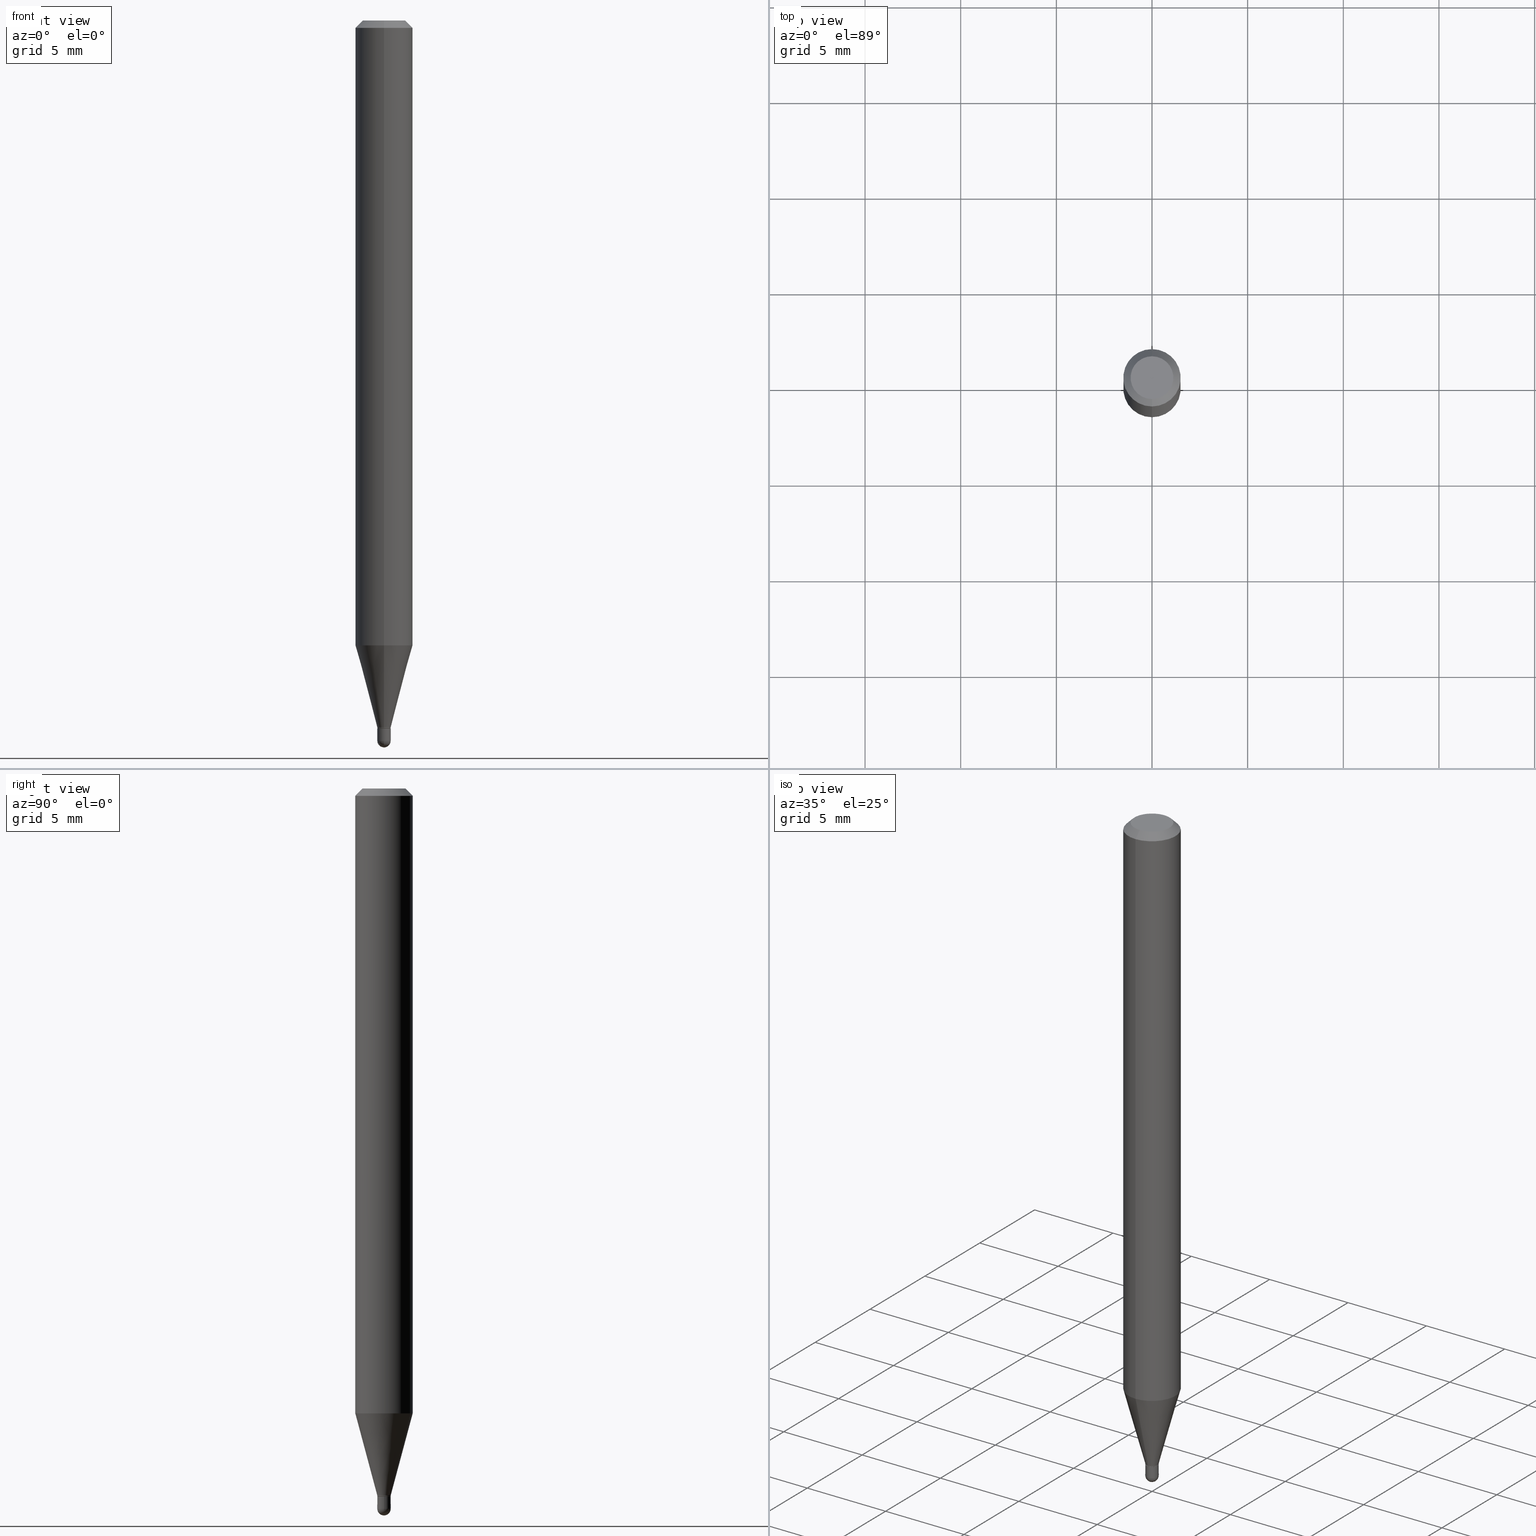
[diagram: canonical four-view strip — front | top / right | iso, engineering-drawing reading convention]
A machine part, canonical four-view strip (front | top / right | iso — engineering-drawing reading convention). The complete STEP part file that produces these views, byte-faithful:
ISO-10303-21;
HEADER;
FILE_DESCRIPTION (( 'STEP AP203' ),
    '1' );
FILE_NAME ('05048.STEP',
    '2024-03-08T21:13:14',
    ( '' ),
    ( '' ),
    'SwSTEP 2.0',
    'SolidWorks 2023',
    '' );
FILE_SCHEMA (( 'CONFIG_CONTROL_DESIGN' ));
ENDSEC;

DATA;
#1 = ORIENTED_EDGE ( 'NONE', *, *, #148, .T. ) ;
#2 = CARTESIAN_POINT ( 'NONE',  ( 3.599717260347271507E-16, 0.04404999999999999888, -2.343019103179918348E-16 ) ) ;
#3 = APPROVAL ( #60, 'UNSPECIFIED' ) ;
#4 = DIRECTION ( 'NONE',  ( -2.445498150151118420E-29, 3.491439316613704829E-15, 1.000000000000000000 ) ) ;
#5 = APPLICATION_CONTEXT ( 'configuration controlled 3d designs of mechanical parts and assemblies' ) ;
#6 = FACE_OUTER_BOUND ( 'NONE', #197, .T. ) ;
#7 = CARTESIAN_POINT ( 'NONE',  ( 0.000000000000000000, 0.000000000000000000, 0.000000000000000000 ) ) ;
#8 = EDGE_CURVE ( 'NONE', #277, #139, #27, .T. ) ;
#9 = DIRECTION ( 'NONE',  ( -2.445498150151118420E-29, 3.491439316613704829E-15, 1.000000000000000000 ) ) ;
#10 = CIRCLE ( 'NONE', #479, 0.01379999999999992344 ) ;
#11 = DIRECTION ( 'NONE',  ( 0.000000000000000000, 0.000000000000000000, 1.000000000000000000 ) ) ;
#12 = LOCAL_TIME ( 16, 13, 14.00000000000000000, #417 ) ;
#13 = DIRECTION ( 'NONE',  ( -6.982962677686265133E-15, -1.000000000000000000, 0.000000000000000000 ) ) ;
#14 = DIRECTION ( 'NONE',  ( 2.445498150151118420E-29, -3.491439316613704434E-15, -1.000000000000000000 ) ) ;
#15 = CARTESIAN_POINT ( 'NONE',  ( 3.562357155325133829E-29, -5.085979652511183214E-15, -1.456699999999999884 ) ) ;
#16 = AXIS2_PLACEMENT_3D ( 'NONE', #164, #508, #434 ) ;
#17 = LOCAL_TIME ( 16, 13, 14.00000000000000000, #221 ) ;
#18 = FACE_OUTER_BOUND ( 'NONE', #414, .T. ) ;
#19 = EDGE_CURVE ( 'NONE', #124, #453, #383, .T. ) ;
#20 = DIRECTION ( 'NONE',  ( -2.445498150151118420E-29, 3.491439316613704829E-15, 1.000000000000000000 ) ) ;
#21 = VERTEX_POINT ( 'NONE', #121 ) ;
#22 = CARTESIAN_POINT ( 'NONE',  ( 0.000000000000000000, 0.000000000000000000, 0.000000000000000000 ) ) ;
#23 = PERSON_AND_ORGANIZATION_ROLE ( 'classification_officer' ) ;
#24 = VERTEX_POINT ( 'NONE', #509 ) ;
#25 = DIRECTION ( 'NONE',  ( -6.982962677686265922E-15, -1.000000000000000000, 0.000000000000000000 ) ) ;
#26 = CC_DESIGN_APPROVAL ( #131, ( #146 ) ) ;
#27 = CIRCLE ( 'NONE', #105, 0.01379999999999999977 ) ;
#28 = PERSON_AND_ORGANIZATION ( #63, #408 ) ;
#29 = EDGE_LOOP ( 'NONE', ( #106, #378, #238, #275, #465 ) ) ;
#30 = DIRECTION ( 'NONE',  ( -2.445498150151118420E-29, 3.491439316613704829E-15, 1.000000000000000000 ) ) ;
#31 = DIRECTION ( 'NONE',  ( -2.445498150151118420E-29, 3.491439316613704829E-15, 1.000000000000000000 ) ) ;
#32 = ORIENTED_EDGE ( 'NONE', *, *, #181, .F. ) ;
#33 = CARTESIAN_POINT ( 'NONE',  ( -9.636488495203464137E-17, -0.01380000000000505475, -1.456199999999999939 ) ) ;
#34 = AXIS2_PLACEMENT_3D ( 'NONE', #502, #20, #25 ) ;
#35 = ORIENTED_EDGE ( 'NONE', *, *, #278, .T. ) ;
#36 = DIRECTION ( 'NONE',  ( -2.445498150151118420E-29, 3.491439316613704829E-15, 1.000000000000000000 ) ) ;
#37 = EDGE_LOOP ( 'NONE', ( #349, #182, #32, #72 ) ) ;
#38 = DIRECTION ( 'NONE',  ( -2.445498150151118420E-29, 3.491439316613704829E-15, 1.000000000000000000 ) ) ;
#39 = CARTESIAN_POINT ( 'NONE',  ( 3.562314409969888354E-29, -5.086040866292809657E-15, -1.456699999999999884 ) ) ;
#40 = CYLINDRICAL_SURFACE ( 'NONE', #287, 0.01379999999999978640 ) ;
#41 = AXIS2_PLACEMENT_3D ( 'NONE', #86, #286, #251 ) ;
#42 = AXIS2_PLACEMENT_3D ( 'NONE', #500, #30, #220 ) ;
#43 =( LENGTH_UNIT ( ) NAMED_UNIT ( * ) SI_UNIT ( $, .METRE. ) );
#44 = DIMENSIONAL_EXPONENTS ( 1.000000000000000000, 0.000000000000000000, 0.000000000000000000, 0.000000000000000000, 0.000000000000000000, 0.000000000000000000, 0.000000000000000000 ) ;
#45 = DIRECTION ( 'NONE',  ( -2.445498150151118420E-29, 3.491439316613704829E-15, 1.000000000000000000 ) ) ;
#46 = DIRECTION ( 'NONE',  ( -2.445498150151118701E-29, 3.491439316613704434E-15, 1.000000000000000000 ) ) ;
#47 = CIRCLE ( 'NONE', #144, 0.01329999999999999932 ) ;
#48 = CARTESIAN_POINT ( 'NONE',  ( 3.075995059520799729E-16, 0.04404999999999999888, -1.940499061074127601E-16 ) ) ;
#49 = EDGE_CURVE ( 'NONE', #124, #24, #89, .T. ) ;
#50 = APPROVAL_ROLE ( '' ) ;
#51 = DIRECTION ( 'NONE',  ( -2.445498150151118420E-29, 3.491439316613704829E-15, 1.000000000000000000 ) ) ;
#52 = UNCERTAINTY_MEASURE_WITH_UNIT (LENGTH_MEASURE( 1.000000000000000082E-05 ), #326, 'distance_accuracy_value', 'NONE');
#53 = DATE_AND_TIME ( #411, #288 ) ;
#54 = ORIENTED_EDGE ( 'NONE', *, *, #325, .F. ) ;
#55 = FACE_OUTER_BOUND ( 'NONE', #29, .T. ) ;
#56 = CALENDAR_DATE ( 2024, 8, 3 ) ;
#57 = CC_DESIGN_SECURITY_CLASSIFICATION ( #146, ( #359 ) ) ;
#58 = CARTESIAN_POINT ( 'NONE',  ( -9.287340361319169587E-17, -0.01330000000000508553, -1.456699999999999884 ) ) ;
#59 = PLANE ( 'NONE',  #225 ) ;
#60 = APPROVAL_STATUS ( 'not_yet_approved' ) ;
#61 = ORIENTED_EDGE ( 'NONE', *, *, #486, .T. ) ;
#62 = CARTESIAN_POINT ( 'NONE',  ( 4.123439461173743285E-16, 0.05904999999999994975, -0.01500000000000028741 ) ) ;
#63 = PERSON ( 'UNSPECIFIED', 'UNSPECIFIED', 'UNSPECIFIED', ('UNSPECIFIED'), ('UNSPECIFIED'), ('UNSPECIFIED') ) ;
#64 = DESIGN_CONTEXT ( 'detailed design', #116, 'design' ) ;
#65 = COORDINATED_UNIVERSAL_TIME_OFFSET ( 5, 0, .BEHIND. ) ;
#66 = ORIENTED_EDGE ( 'NONE', *, *, #333, .F. ) ;
#67 = CARTESIAN_POINT ( 'NONE',  ( 3.624918411408227122E-29, -5.175422788567193795E-15, -1.482299999999999729 ) ) ;
#68 = AXIS2_PLACEMENT_3D ( 'NONE', #422, #253, #415 ) ;
#69 = AXIS2_PLACEMENT_3D ( 'NONE', #133, #292, #248 ) ;
#70 = EDGE_CURVE ( 'NONE', #453, #503, #303, .T. ) ;
#71 = CLOSED_SHELL ( 'NONE', ( #210, #191, #240, #91, #452 ) ) ;
#72 = ORIENTED_EDGE ( 'NONE', *, *, #77, .F. ) ;
#73 = CARTESIAN_POINT ( 'NONE',  ( 3.623738281929160025E-29, -5.177112801150018502E-15, -1.482299999999999951 ) ) ;
#74 = ORIENTED_EDGE ( 'NONE', *, *, #421, .T. ) ;
#75 = CARTESIAN_POINT ( 'NONE',  ( -9.636488495203245968E-17, -0.01380000000000473036, -1.454800000000000093 ) ) ;
#76 = EDGE_LOOP ( 'NONE', ( #397, #337, #472, #217 ) ) ;
#77 = EDGE_CURVE ( 'NONE', #316, #222, #212, .T. ) ;
#78 = LINE ( 'NONE', #120, #127 ) ;
#79 = CIRCLE ( 'NONE', #256, 0.01329999999999999932 ) ;
#80 = LOCAL_TIME ( 16, 13, 14.00000000000000000, #108 ) ;
#81 = AXIS2_PLACEMENT_3D ( 'NONE', #299, #461, #153 ) ;
#82 = EDGE_LOOP ( 'NONE', ( #460, #35 ) ) ;
#83 = CARTESIAN_POINT ( 'NONE',  ( 9.805489753492690685E-17, 0.01379999999999457008, -1.454800000000000093 ) ) ;
#84 = VERTEX_POINT ( 'NONE', #451 ) ;
#85 = CYLINDRICAL_SURFACE ( 'NONE', #374, 0.05904999999999999832 ) ;
#86 = CARTESIAN_POINT ( 'NONE',  ( 3.557710708839847100E-29, -5.079345917809617194E-15, -1.454800000000000093 ) ) ;
#87 = EDGE_CURVE ( 'NONE', #84, #399, #481, .T. ) ;
#88 = AXIS2_PLACEMENT_3D ( 'NONE', #90, #45, #177 ) ;
#89 = CIRCLE ( 'NONE', #159, 0.05904999999999999832 ) ;
#90 = CARTESIAN_POINT ( 'NONE',  ( 3.561134406250058226E-29, -5.084233932852877072E-15, -1.456199999999999939 ) ) ;
#91 = ADVANCED_FACE ( 'NONE', ( #97 ), #170, .T. ) ;
#92 = PERSON_AND_ORGANIZATION ( #63, #408 ) ;
#93 = ADVANCED_FACE ( 'NONE', ( #6 ), #477, .T. ) ;
#94 = AXIS2_PLACEMENT_3D ( 'NONE', #140, #307, #454 ) ;
#95 =( GEOMETRIC_REPRESENTATION_CONTEXT ( 3 ) GLOBAL_UNCERTAINTY_ASSIGNED_CONTEXT ( ( #52 ) ) GLOBAL_UNIT_ASSIGNED_CONTEXT ( ( #326, #444, #446 ) ) REPRESENTATION_CONTEXT ( 'NONE', 'WORKASPACE' ) );
#96 = LINE ( 'NONE', #476, #249 ) ;
#97 = FACE_OUTER_BOUND ( 'NONE', #119, .T. ) ;
#98 = DATE_TIME_ROLE ( 'creation_date' ) ;
#99 = FACE_OUTER_BOUND ( 'NONE', #112, .T. ) ;
#100 = CC_DESIGN_DATE_AND_TIME_ASSIGNMENT ( #53, #98, ( #273 ) ) ;
#101 = DATE_AND_TIME ( #498, #416 ) ;
#102 = VECTOR ( 'NONE', #320, 39.37007874015748143 ) ;
#103 = DIRECTION ( 'NONE',  ( -2.445498150151118420E-29, 3.491439316613704829E-15, 1.000000000000000000 ) ) ;
#104 = PRODUCT ( '05048', '05048', '', ( #291 ) ) ;
#105 = AXIS2_PLACEMENT_3D ( 'NONE', #39, #394, #196 ) ;
#106 = ORIENTED_EDGE ( 'NONE', *, *, #87, .T. ) ;
#107 = DIRECTION ( 'NONE',  ( -4.937700262164674260E-15, -0.7071067811865632269, 0.7071067811865319186 ) ) ;
#108 = COORDINATED_UNIVERSAL_TIME_OFFSET ( 5, 0, .BEHIND. ) ;
#109 = ORIENTED_EDGE ( 'NONE', *, *, #315, .F. ) ;
#110 = ADVANCED_FACE ( 'NONE', ( #448 ), #409, .F. ) ;
#111 = CARTESIAN_POINT ( 'NONE',  ( -0.01379999999999999977, -5.032676929895108444E-15, -1.456699999999999884 ) ) ;
#112 = EDGE_LOOP ( 'NONE', ( #507, #458 ) ) ;
#113 = FACE_OUTER_BOUND ( 'NONE', #117, .T. ) ;
#114 = AXIS2_PLACEMENT_3D ( 'NONE', #377, #223, #151 ) ;
#115 = CC_DESIGN_PERSON_AND_ORGANIZATION_ASSIGNMENT ( #92, #132, ( #104 ) ) ;
#116 = APPLICATION_CONTEXT ( 'configuration controlled 3d designs of mechanical parts and assemblies' ) ;
#117 = EDGE_LOOP ( 'NONE', ( #229, #61, #352, #462 ) ) ;
#118 = CARTESIAN_POINT ( 'NONE',  ( 9.450218385612891726E-17, 0.01329999999999491311, -1.456699999999999884 ) ) ;
#119 = EDGE_LOOP ( 'NONE', ( #489, #267, #439, #192 ) ) ;
#120 = CARTESIAN_POINT ( 'NONE',  ( -0.01379999999999999977, 9.805489753489382399E-17, -6.788130424551770621E-31 ) ) ;
#121 = CARTESIAN_POINT ( 'NONE',  ( -9.636488495203245968E-17, -0.01380000000000473036, -1.454800000000000093 ) ) ;
#122 = ORIENTED_EDGE ( 'NONE', *, *, #70, .F. ) ;
#123 = LINE ( 'NONE', #356, #319 ) ;
#124 = VERTEX_POINT ( 'NONE', #381 ) ;
#125 = CARTESIAN_POINT ( 'NONE',  ( 0.01379999999999999977, -9.636488495207048524E-17, 6.729123950598392144E-31 ) ) ;
#126 = FACE_OUTER_BOUND ( 'NONE', #332, .T. ) ;
#127 = VECTOR ( 'NONE', #350, 39.37007874015748143 ) ;
#128 = CC_DESIGN_APPROVAL ( #3, ( #359 ) ) ;
#129 = DIRECTION ( 'NONE',  ( -6.982962677686265922E-15, -1.000000000000000000, 3.491439316613704434E-15 ) ) ;
#130 = VERTEX_POINT ( 'NONE', #228 ) ;
#131 = APPROVAL ( #258, 'UNSPECIFIED' ) ;
#132 = PERSON_AND_ORGANIZATION_ROLE ( 'design_owner' ) ;
#133 = CARTESIAN_POINT ( 'NONE',  ( 0.000000000000000000, 0.000000000000000000, 0.000000000000000000 ) ) ;
#134 = CONICAL_SURFACE ( 'NONE', #435, 0.01329999999999999932, 0.7853981633974739252 ) ;
#135 = DATE_AND_TIME ( #56, #17 ) ;
#136 = CIRCLE ( 'NONE', #34, 0.01379999999999965109 ) ;
#137 = AXIS2_PLACEMENT_3D ( 'NONE', #15, #9, #13 ) ;
#138 = CARTESIAN_POINT ( 'NONE',  ( 3.624918411408227122E-29, -5.175422788567193795E-15, -1.482299999999999729 ) ) ;
#139 = VERTEX_POINT ( 'NONE', #111 ) ;
#140 = CARTESIAN_POINT ( 'NONE',  ( 3.668247225226697196E-31, -5.237158974920585691E-17, -0.01500000000000008098 ) ) ;
#141 = APPROVAL_DATE_TIME ( #263, #3 ) ;
#142 = DIRECTION ( 'NONE',  ( 1.000000000000000000, -6.982962677686267499E-15, 4.876176775795936353E-29 ) ) ;
#143 = SECURITY_CLASSIFICATION_LEVEL ( 'unclassified' ) ;
#144 = AXIS2_PLACEMENT_3D ( 'NONE', #317, #470, #280 ) ;
#145 = ORIENTED_EDGE ( 'NONE', *, *, #247, .T. ) ;
#146 = SECURITY_CLASSIFICATION ( '', '', #143 ) ;
#147 = CYLINDRICAL_SURFACE ( 'NONE', #174, 0.05904999999999999832 ) ;
#148 = EDGE_CURVE ( 'NONE', #501, #21, #136, .T. ) ;
#149 = PERSON_AND_ORGANIZATION ( #63, #408 ) ;
#150 = EDGE_LOOP ( 'NONE', ( #109, #232 ) ) ;
#151 = DIRECTION ( 'NONE',  ( -6.982962677686265922E-15, -1.000000000000000000, 0.000000000000000000 ) ) ;
#152 = VERTEX_POINT ( 'NONE', #58 ) ;
#153 = DIRECTION ( 'NONE',  ( -6.982962677686265922E-15, -1.000000000000000000, 0.000000000000000000 ) ) ;
#154 = MANIFOLD_SOLID_BREP ( 'Body-Move/Copy2[2]', #341 ) ;
#155 = ORIENTED_EDGE ( 'NONE', *, *, #208, .T. ) ;
#156 = DIRECTION ( 'NONE',  ( -1.000000000000000000, 6.982962677686265922E-15, -4.883557194083112340E-29 ) ) ;
#157 = CIRCLE ( 'NONE', #167, 0.01379999999999999977 ) ;
#158 = ADVANCED_FACE ( 'NONE', ( #459 ), #147, .T. ) ;
#159 = AXIS2_PLACEMENT_3D ( 'NONE', #162, #340, #214 ) ;
#160 = EDGE_LOOP ( 'NONE', ( #66, #74, #306, #283 ) ) ;
#161 = DIRECTION ( 'NONE',  ( -6.982962677686265922E-15, -1.000000000000000000, 0.000000000000000000 ) ) ;
#162 = CARTESIAN_POINT ( 'NONE',  ( 3.144726477425218544E-29, -4.489728059127768371E-15, -1.285924700957508993 ) ) ;
#163 = ORIENTED_EDGE ( 'NONE', *, *, #231, .T. ) ;
#164 = CARTESIAN_POINT ( 'NONE',  ( 3.623738281929160025E-29, -5.177112801150018502E-15, -1.482299999999999951 ) ) ;
#165 = ORIENTED_EDGE ( 'NONE', *, *, #245, .F. ) ;
#166 = LINE ( 'NONE', #125, #450 ) ;
#167 = AXIS2_PLACEMENT_3D ( 'NONE', #379, #308, #334 ) ;
#168 = EDGE_CURVE ( 'NONE', #389, #21, #335, .T. ) ;
#169 = CARTESIAN_POINT ( 'NONE',  ( 3.656895686714981183E-29, -5.226140249917465537E-15, -1.496099999999999985 ) ) ;
#170 = SPHERICAL_SURFACE ( 'NONE', #190, 0.01379999999999999977 ) ;
#171 = CYLINDRICAL_SURFACE ( 'NONE', #207, 0.01379999999999999977 ) ;
#172 = FACE_OUTER_BOUND ( 'NONE', #76, .T. ) ;
#173 = AXIS2_PLACEMENT_3D ( 'NONE', #22, #185, #142 ) ;
#174 = AXIS2_PLACEMENT_3D ( 'NONE', #189, #386, #259 ) ;
#175 = ORIENTED_EDGE ( 'NONE', *, *, #19, .F. ) ;
#176 = EDGE_CURVE ( 'NONE', #21, #501, #206, .T. ) ;
#177 = DIRECTION ( 'NONE',  ( -6.982962677686265922E-15, -1.000000000000000000, 0.000000000000000000 ) ) ;
#178 = DIRECTION ( 'NONE',  ( -2.445498150151118420E-29, 3.491439316613704434E-15, 1.000000000000000000 ) ) ;
#179 = VECTOR ( 'NONE', #418, 39.37007874015748143 ) ;
#180 = APPROVAL_DATE_TIME ( #135, #131 ) ;
#181 = EDGE_CURVE ( 'NONE', #222, #84, #281, .T. ) ;
#182 = ORIENTED_EDGE ( 'NONE', *, *, #392, .T. ) ;
#183 = SPHERICAL_SURFACE ( 'NONE', #114, 0.01379999999999999977 ) ;
#184 = EDGE_CURVE ( 'NONE', #424, #346, #250, .T. ) ;
#185 = DIRECTION ( 'NONE',  ( -2.445468806185136597E-29, 3.491481338843145583E-15, 1.000000000000000000 ) ) ;
#186 = ORIENTED_EDGE ( 'NONE', *, *, #278, .F. ) ;
#187 = DIRECTION ( 'NONE',  ( -1.000000000000000000, 6.982962677686265922E-15, -4.876176775795935793E-29 ) ) ;
#188 = CIRCLE ( 'NONE', #16, 0.01379999999999999977 ) ;
#189 = CARTESIAN_POINT ( 'NONE',  ( 0.000000000000000000, 0.000000000000000000, 0.000000000000000000 ) ) ;
#190 = AXIS2_PLACEMENT_3D ( 'NONE', #474, #285, #323 ) ;
#191 = ADVANCED_FACE ( 'NONE', ( #491 ), #183, .T. ) ;
#192 = ORIENTED_EDGE ( 'NONE', *, *, #87, .F. ) ;
#193 = CARTESIAN_POINT ( 'NONE',  ( 3.557710708839847100E-29, -5.079345917809617194E-15, -1.454800000000000093 ) ) ;
#194 = ORIENTED_EDGE ( 'NONE', *, *, #325, .T. ) ;
#195 = DIRECTION ( 'NONE',  ( -6.982962677686265133E-15, -1.000000000000000000, 0.000000000000000000 ) ) ;
#196 = DIRECTION ( 'NONE',  ( 1.000000000000000000, -6.982962677686234367E-15, 0.000000000000000000 ) ) ;
#197 = EDGE_LOOP ( 'NONE', ( #433, #467, #313, #391 ) ) ;
#198 = CARTESIAN_POINT ( 'NONE',  ( -9.636488495203423462E-17, -0.01380000000000517792, -1.482299999999999729 ) ) ;
#199 = EDGE_LOOP ( 'NONE', ( #241, #227, #469, #165 ) ) ;
#200 = DIRECTION ( 'NONE',  ( -2.445498150151118420E-29, 3.491439316613704829E-15, 1.000000000000000000 ) ) ;
#201 = ORIENTED_EDGE ( 'NONE', *, *, #77, .T. ) ;
#202 = DIRECTION ( 'NONE',  ( 4.937700262164548042E-15, 0.7071067811865451302, -0.7071067811865499042 ) ) ;
#203 = ADVANCED_FACE ( 'NONE', ( #265 ), #302, .T. ) ;
#204 = DIRECTION ( 'NONE',  ( -6.982962677686265133E-15, -1.000000000000000000, 0.000000000000000000 ) ) ;
#205 = CIRCLE ( 'NONE', #88, 0.01379999999999992344 ) ;
#206 = CIRCLE ( 'NONE', #81, 0.01379999999999965109 ) ;
#207 = AXIS2_PLACEMENT_3D ( 'NONE', #370, #324, #213 ) ;
#208 = EDGE_CURVE ( 'NONE', #399, #316, #157, .T. ) ;
#209 = DIRECTION ( 'NONE',  ( 6.982962677686265922E-15, 1.000000000000000000, -3.505890868245046092E-15 ) ) ;
#210 = ADVANCED_FACE ( 'NONE', ( #55 ), #490, .T. ) ;
#211 = CC_DESIGN_PERSON_AND_ORGANIZATION_ASSIGNMENT ( #413, #423, ( #273 ) ) ;
#212 = CIRCLE ( 'NONE', #375, 0.01379999999999999977 ) ;
#213 = DIRECTION ( 'NONE',  ( 1.000000000000000000, -6.982962677686267499E-15, 4.876176775795936353E-29 ) ) ;
#214 = DIRECTION ( 'NONE',  ( -6.982962677686265922E-15, -1.000000000000000000, 4.626330217890369336E-15 ) ) ;
#215 = PLANE ( 'NONE',  #495 ) ;
#216 = PERSON_AND_ORGANIZATION ( #63, #408 ) ;
#217 = ORIENTED_EDGE ( 'NONE', *, *, #70, .T. ) ;
#218 = CARTESIAN_POINT ( 'NONE',  ( 0.01379999999999999977, -5.227096712382071878E-15, -1.482299999999999729 ) ) ;
#219 = CC_DESIGN_PERSON_AND_ORGANIZATION_ASSIGNMENT ( #28, #23, ( #146 ) ) ;
#220 = DIRECTION ( 'NONE',  ( -6.982962677686265133E-15, -1.000000000000000000, 3.491439316613704829E-15 ) ) ;
#221 = COORDINATED_UNIVERSAL_TIME_OFFSET ( 5, 0, .BEHIND. ) ;
#222 = VERTEX_POINT ( 'NONE', #218 ) ;
#223 = DIRECTION ( 'NONE',  ( 1.000000000000000000, -6.982962677686265922E-15, 4.883557194083112901E-29 ) ) ;
#224 = ADVANCED_FACE ( 'NONE', ( #18 ), #427, .T. ) ;
#225 = AXIS2_PLACEMENT_3D ( 'NONE', #304, #255, #187 ) ;
#226 = PERSON_AND_ORGANIZATION ( #63, #408 ) ;
#227 = ORIENTED_EDGE ( 'NONE', *, *, #333, .T. ) ;
#228 = CARTESIAN_POINT ( 'NONE',  ( 9.627854069552891045E-17, 0.01329999999999491311, -1.456699999999999884 ) ) ;
#229 = ORIENTED_EDGE ( 'NONE', *, *, #294, .T. ) ;
#230 = CARTESIAN_POINT ( 'NONE',  ( 0.01379999999999999977, -5.182405751244879809E-15, -1.456699999999999884 ) ) ;
#231 = EDGE_CURVE ( 'NONE', #24, #503, #425, .T. ) ;
#232 = ORIENTED_EDGE ( 'NONE', *, *, #421, .F. ) ;
#233 = DIRECTION ( 'NONE',  ( -4.851104656540964275E-15, -0.7071067811865500152, -0.7071067811865450192 ) ) ;
#234 = VERTEX_POINT ( 'NONE', #463 ) ;
#235 = CARTESIAN_POINT ( 'NONE',  ( -0.01379999999999999977, -5.032676929895108444E-15, -1.482299999999999729 ) ) ;
#236 = CIRCLE ( 'NONE', #457, 0.01379999999999999977 ) ;
#237 = APPROVAL_PERSON_ORGANIZATION ( #449, #363, #50 ) ;
#238 = ORIENTED_EDGE ( 'NONE', *, *, #8, .F. ) ;
#239 = LINE ( 'NONE', #83, #102 ) ;
#240 = ADVANCED_FACE ( 'NONE', ( #99 ), #59, .F. ) ;
#241 = ORIENTED_EDGE ( 'NONE', *, *, #315, .T. ) ;
#242 = CARTESIAN_POINT ( 'NONE',  ( 0.000000000000000000, 0.000000000000000000, 0.000000000000000000 ) ) ;
#243 = DIRECTION ( 'NONE',  ( -6.982962677686265922E-15, -1.000000000000000000, 3.505890868245046092E-15 ) ) ;
#244 = VECTOR ( 'NONE', #314, 39.37007874015748143 ) ;
#245 = EDGE_CURVE ( 'NONE', #152, #389, #338, .T. ) ;
#246 = CARTESIAN_POINT ( 'NONE',  ( -4.123439461173736383E-16, -0.05905000000000005383, -0.01499999999999987454 ) ) ;
#247 = EDGE_CURVE ( 'NONE', #24, #124, #339, .T. ) ;
#248 = DIRECTION ( 'NONE',  ( -6.982962677686266711E-15, -1.000000000000000000, 3.491439316613704829E-15 ) ) ;
#249 = VECTOR ( 'NONE', #46, 39.37007874015748143 ) ;
#250 = CIRCLE ( 'NONE', #42, 0.04404999999999999888 ) ;
#251 = DIRECTION ( 'NONE',  ( -6.982962677686265922E-15, -1.000000000000000000, 0.000000000000000000 ) ) ;
#252 = PERSON_AND_ORGANIZATION_ROLE ( 'design_supplier' ) ;
#253 = DIRECTION ( 'NONE',  ( -2.445498150151118420E-29, 3.491439316613704829E-15, 1.000000000000000000 ) ) ;
#254 = EDGE_CURVE ( 'NONE', #424, #453, #262, .T. ) ;
#255 = DIRECTION ( 'NONE',  ( 2.438088387897960049E-29, -3.491481338843145188E-15, -1.000000000000000000 ) ) ;
#256 = AXIS2_PLACEMENT_3D ( 'NONE', #390, #36, #195 ) ;
#257 = ADVANCED_FACE ( 'NONE', ( #347 ), #134, .T. ) ;
#258 = APPROVAL_STATUS ( 'not_yet_approved' ) ;
#259 = DIRECTION ( 'NONE',  ( -6.982962677686265922E-15, -1.000000000000000000, 3.491439316613704829E-15 ) ) ;
#260 = COORDINATED_UNIVERSAL_TIME_OFFSET ( 5, 0, .BEHIND. ) ;
#261 = VERTEX_POINT ( 'NONE', #169 ) ;
#262 = LINE ( 'NONE', #62, #443 ) ;
#263 = DATE_AND_TIME ( #492, #80 ) ;
#264 = ORIENTED_EDGE ( 'NONE', *, *, #351, .F. ) ;
#265 = FACE_OUTER_BOUND ( 'NONE', #420, .T. ) ;
#266 = CONICAL_SURFACE ( 'NONE', #41, 0.01379999999999965109, 0.2617993877991523499 ) ;
#267 = ORIENTED_EDGE ( 'NONE', *, *, #344, .T. ) ;
#268 = VECTOR ( 'NONE', #388, 39.37007874015748143 ) ;
#269 = CARTESIAN_POINT ( 'NONE',  ( 0.000000000000000000, 0.000000000000000000, 0.000000000000000000 ) ) ;
#270 = EDGE_CURVE ( 'NONE', #503, #453, #487, .T. ) ;
#271 = ORIENTED_EDGE ( 'NONE', *, *, #19, .T. ) ;
#272 = CARTESIAN_POINT ( 'NONE',  ( 3.668247225226697196E-31, -5.237158974920585691E-17, -0.01500000000000008098 ) ) ;
#273 = PRODUCT_DEFINITION ( 'UNKNOWN', '', #359, #64 ) ;
#274 = CARTESIAN_POINT ( 'NONE',  ( 4.195754854663390985E-16, 0.05904999999999999832, -2.061694916460392588E-16 ) ) ;
#275 = ORIENTED_EDGE ( 'NONE', *, *, #441, .F. ) ;
#276 = DIRECTION ( 'NONE',  ( 1.000000000000000000, -6.982962677686234367E-15, 0.000000000000000000 ) ) ;
#277 = VERTEX_POINT ( 'NONE', #230 ) ;
#278 = EDGE_CURVE ( 'NONE', #346, #424, #331, .T. ) ;
#279 = AXIS2_PLACEMENT_3D ( 'NONE', #402, #480, #209 ) ;
#280 = DIRECTION ( 'NONE',  ( -6.982962677686265133E-15, -1.000000000000000000, 0.000000000000000000 ) ) ;
#281 = CIRCLE ( 'NONE', #366, 0.01379999999999999977 ) ;
#282 = ADVANCED_BREP_SHAPE_REPRESENTATION ( '05048', ( #321, #154, #506 ), #95 ) ;
#283 = ORIENTED_EDGE ( 'NONE', *, *, #512, .F. ) ;
#284 = DIRECTION ( 'NONE',  ( -2.445468806185136877E-29, 3.491481338843145188E-15, 1.000000000000000000 ) ) ;
#285 = DIRECTION ( 'NONE',  ( 1.000000000000000000, -6.982962677686265922E-15, 4.883557194083112901E-29 ) ) ;
#286 = DIRECTION ( 'NONE',  ( -2.445498150151118420E-29, 3.491439316613704829E-15, 1.000000000000000000 ) ) ;
#287 = AXIS2_PLACEMENT_3D ( 'NONE', #269, #430, #393 ) ;
#288 = LOCAL_TIME ( 16, 13, 14.00000000000000000, #65 ) ;
#289 = AXIS2_PLACEMENT_3D ( 'NONE', #361, #368, #438 ) ;
#290 = CARTESIAN_POINT ( 'NONE',  ( 2.588151915006488292E-16, 0.01379999999999457008, -1.454800000000000093 ) ) ;
#291 = MECHANICAL_CONTEXT ( 'NONE', #5, 'mechanical' ) ;
#292 = DIRECTION ( 'NONE',  ( -2.445498150151118420E-29, 3.491439316613704829E-15, 1.000000000000000000 ) ) ;
#293 = APPLICATION_PROTOCOL_DEFINITION ( 'international standard', 'config_control_design', 1994, #116 ) ;
#294 = EDGE_CURVE ( 'NONE', #389, #234, #10, .T. ) ;
#295 = DIRECTION ( 'NONE',  ( 6.982962677686265922E-15, 1.000000000000000000, -3.491439316613704434E-15 ) ) ;
#296 = VECTOR ( 'NONE', #107, 39.37007874015748143 ) ;
#297 = PERSON_AND_ORGANIZATION_ROLE ( 'creator' ) ;
#298 = EDGE_LOOP ( 'NONE', ( #175, #311, #163, #122 ) ) ;
#299 = CARTESIAN_POINT ( 'NONE',  ( 3.557710708839847100E-29, -5.079345917809617194E-15, -1.454800000000000093 ) ) ;
#300 = ADVANCED_FACE ( 'NONE', ( #113 ), #40, .T. ) ;
#301 = DIRECTION ( 'NONE',  ( -2.445498150151118701E-29, 3.491439316613704434E-15, 1.000000000000000000 ) ) ;
#302 = CONICAL_SURFACE ( 'NONE', #364, 0.01379999999999965109, 0.2617993877991523499 ) ;
#303 = CIRCLE ( 'NONE', #360, 0.05904999999999999832 ) ;
#304 = CARTESIAN_POINT ( 'NONE',  ( 9.636488495210609491E-17, 0.01379999999999491356, -1.456699999999999884 ) ) ;
#305 = DATE_TIME_ROLE ( 'classification_date' ) ;
#306 = ORIENTED_EDGE ( 'NONE', *, *, #245, .T. ) ;
#307 = DIRECTION ( 'NONE',  ( 2.445498150151118420E-29, -3.491439316613704829E-15, -1.000000000000000000 ) ) ;
#308 = DIRECTION ( 'NONE',  ( -2.445468806185136597E-29, 3.491481338843145583E-15, 1.000000000000000000 ) ) ;
#309 = CONICAL_SURFACE ( 'NONE', #137, 0.01329999999999999932, 0.7853981633974739252 ) ;
#310 = APPROVAL_PERSON_ORGANIZATION ( #149, #131, #485 ) ;
#311 = ORIENTED_EDGE ( 'NONE', *, *, #49, .T. ) ;
#312 = DIRECTION ( 'NONE',  ( 5.024295867788190974E-15, 0.7071067811865681119, 0.7071067811865270336 ) ) ;
#313 = ORIENTED_EDGE ( 'NONE', *, *, #168, .T. ) ;
#314 = DIRECTION ( 'NONE',  ( -1.807323732225343944E-15, -0.2588190451025201844, 0.9659258262890684232 ) ) ;
#315 = EDGE_CURVE ( 'NONE', #152, #130, #79, .T. ) ;
#316 = VERTEX_POINT ( 'NONE', #198 ) ;
#317 = CARTESIAN_POINT ( 'NONE',  ( 3.562357155325133829E-29, -5.085979652511183214E-15, -1.456699999999999884 ) ) ;
#318 = ORIENTED_EDGE ( 'NONE', *, *, #351, .T. ) ;
#319 = VECTOR ( 'NONE', #233, 39.37007874015748143 ) ;
#320 = DIRECTION ( 'NONE',  ( 1.839019923739614515E-15, 0.2588190451025269567, 0.9659258262890665359 ) ) ;
#321 = MANIFOLD_SOLID_BREP ( 'Body-Move/Copy2[1]', #71 ) ;
#322 = DIRECTION ( 'NONE',  ( -2.445498150151118420E-29, 3.491439316613704829E-15, 1.000000000000000000 ) ) ;
#323 = DIRECTION ( 'NONE',  ( -6.982962677686265922E-15, -1.000000000000000000, 0.000000000000000000 ) ) ;
#324 = DIRECTION ( 'NONE',  ( -2.445468806185136597E-29, 3.491481338843145583E-15, 1.000000000000000000 ) ) ;
#325 = EDGE_CURVE ( 'NONE', #501, #124, #239, .T. ) ;
#326 =( CONVERSION_BASED_UNIT ( 'INCH', #327 ) LENGTH_UNIT ( ) NAMED_UNIT ( #44 ) );
#327 = LENGTH_MEASURE_WITH_UNIT ( LENGTH_MEASURE( 0.02539999999999999897 ), #43 );
#328 = CARTESIAN_POINT ( 'NONE',  ( 3.668247225226697196E-31, -5.237158974920585691E-17, -0.01500000000000008098 ) ) ;
#329 = CC_DESIGN_PERSON_AND_ORGANIZATION_ASSIGNMENT ( #419, #252, ( #359 ) ) ;
#330 = CALENDAR_DATE ( 2024, 8, 3 ) ;
#331 = CIRCLE ( 'NONE', #348, 0.04404999999999999888 ) ;
#332 = EDGE_LOOP ( 'NONE', ( #407, #155, #201, #342, #355 ) ) ;
#333 = EDGE_CURVE ( 'NONE', #130, #234, #432, .T. ) ;
#334 = DIRECTION ( 'NONE',  ( 1.000000000000000000, -6.982962677686234367E-15, 0.000000000000000000 ) ) ;
#335 = LINE ( 'NONE', #345, #395 ) ;
#336 = PRODUCT_RELATED_PRODUCT_CATEGORY ( 'detail', '', ( #104 ) ) ;
#337 = ORIENTED_EDGE ( 'NONE', *, *, #184, .F. ) ;
#338 = LINE ( 'NONE', #494, #296 ) ;
#339 = CIRCLE ( 'NONE', #68, 0.05904999999999999832 ) ;
#340 = DIRECTION ( 'NONE',  ( -2.445498150151118420E-29, 3.491439316613704829E-15, 1.000000000000000000 ) ) ;
#341 = CLOSED_SHELL ( 'NONE', ( #300, #447, #224, #158, #203, #504, #354, #445, #110, #475, #257, #93 ) ) ;
#342 = ORIENTED_EDGE ( 'NONE', *, *, #441, .T. ) ;
#343 = DIRECTION ( 'NONE',  ( 1.000000000000000000, -6.982962677686234367E-15, 0.000000000000000000 ) ) ;
#344 = EDGE_CURVE ( 'NONE', #261, #316, #464, .T. ) ;
#345 = CARTESIAN_POINT ( 'NONE',  ( -9.636488495206899380E-17, -0.01379999999999978640, 4.818186256926838306E-17 ) ) ;
#346 = VERTEX_POINT ( 'NONE', #511 ) ;
#347 = FACE_OUTER_BOUND ( 'NONE', #160, .T. ) ;
#348 = AXIS2_PLACEMENT_3D ( 'NONE', #437, #31, #466 ) ;
#349 = ORIENTED_EDGE ( 'NONE', *, *, #344, .F. ) ;
#350 = DIRECTION ( 'NONE',  ( -2.445468806185136877E-29, 3.491481338843145188E-15, 1.000000000000000000 ) ) ;
#351 = EDGE_CURVE ( 'NONE', #21, #24, #398, .T. ) ;
#352 = ORIENTED_EDGE ( 'NONE', *, *, #176, .F. ) ;
#353 = CARTESIAN_POINT ( 'NONE',  ( 3.562357155325133829E-29, -5.085979652511183214E-15, -1.456699999999999884 ) ) ;
#354 = ADVANCED_FACE ( 'NONE', ( #468 ), #85, .T. ) ;
#355 = ORIENTED_EDGE ( 'NONE', *, *, #365, .F. ) ;
#356 = CARTESIAN_POINT ( 'NONE',  ( -4.051124067684085231E-16, -0.05905000000000005383, -0.01499999999999987454 ) ) ;
#357 = AXIS2_PLACEMENT_3D ( 'NONE', #73, #156, #473 ) ;
#358 = DIRECTION ( 'NONE',  ( -6.982962677686265922E-15, -1.000000000000000000, 3.505890868245046092E-15 ) ) ;
#359 = PRODUCT_DEFINITION_FORMATION_WITH_SPECIFIED_SOURCE ( 'ANY', '', #104, .NOT_KNOWN. ) ;
#360 = AXIS2_PLACEMENT_3D ( 'NONE', #328, #51, #243 ) ;
#361 = CARTESIAN_POINT ( 'NONE',  ( 3.624918411408227122E-29, -5.175422788567193795E-15, -1.482299999999999729 ) ) ;
#362 = EDGE_CURVE ( 'NONE', #346, #503, #123, .T. ) ;
#363 = APPROVAL ( #410, 'UNSPECIFIED' ) ;
#364 = AXIS2_PLACEMENT_3D ( 'NONE', #193, #103, #412 ) ;
#365 = EDGE_CURVE ( 'NONE', #139, #277, #236, .T. ) ;
#366 = AXIS2_PLACEMENT_3D ( 'NONE', #67, #456, #343 ) ;
#367 = FACE_OUTER_BOUND ( 'NONE', #150, .T. ) ;
#368 = DIRECTION ( 'NONE',  ( -2.445468806185136597E-29, 3.491481338843145583E-15, 1.000000000000000000 ) ) ;
#369 = EDGE_CURVE ( 'NONE', #399, #139, #78, .T. ) ;
#370 = CARTESIAN_POINT ( 'NONE',  ( 0.000000000000000000, 0.000000000000000000, 0.000000000000000000 ) ) ;
#371 = DATE_AND_TIME ( #330, #12 ) ;
#372 = ORIENTED_EDGE ( 'NONE', *, *, #270, .F. ) ;
#373 = CARTESIAN_POINT ( 'NONE',  ( -4.123439461173739834E-16, -0.05904999999999999832, 2.061694916460392588E-16 ) ) ;
#374 = AXIS2_PLACEMENT_3D ( 'NONE', #242, #38, #396 ) ;
#375 = AXIS2_PLACEMENT_3D ( 'NONE', #138, #401, #484 ) ;
#376 = APPROVAL_DATE_TIME ( #101, #363 ) ;
#377 = CARTESIAN_POINT ( 'NONE',  ( 3.623738281929160025E-29, -5.177112801150018502E-15, -1.482299999999999951 ) ) ;
#378 = ORIENTED_EDGE ( 'NONE', *, *, #369, .T. ) ;
#379 = CARTESIAN_POINT ( 'NONE',  ( 3.624918411408227122E-29, -5.175422788567193795E-15, -1.482299999999999729 ) ) ;
#380 = ORIENTED_EDGE ( 'NONE', *, *, #49, .F. ) ;
#381 = CARTESIAN_POINT ( 'NONE',  ( 4.195754854663704558E-16, 0.05904999999999550886, -1.285924700957509215 ) ) ;
#382 = VECTOR ( 'NONE', #312, 39.37007874015748143 ) ;
#383 = LINE ( 'NONE', #274, #268 ) ;
#384 = APPROVAL_ROLE ( '' ) ;
#385 = EDGE_LOOP ( 'NONE', ( #54, #1, #318, #380 ) ) ;
#386 = DIRECTION ( 'NONE',  ( -2.445498150151118420E-29, 3.491439316613704829E-15, 1.000000000000000000 ) ) ;
#387 = CC_DESIGN_DATE_AND_TIME_ASSIGNMENT ( #371, #305, ( #146 ) ) ;
#388 = DIRECTION ( 'NONE',  ( -2.445498150151118701E-29, 3.491439316613704434E-15, 1.000000000000000000 ) ) ;
#389 = VERTEX_POINT ( 'NONE', #33 ) ;
#390 = CARTESIAN_POINT ( 'NONE',  ( 3.562357155325133829E-29, -5.085979652511183214E-15, -1.456699999999999884 ) ) ;
#391 = ORIENTED_EDGE ( 'NONE', *, *, #148, .F. ) ;
#392 = EDGE_CURVE ( 'NONE', #261, #84, #188, .T. ) ;
#393 = DIRECTION ( 'NONE',  ( -6.982962677686266711E-15, -1.000000000000000000, 3.491439316613704829E-15 ) ) ;
#394 = DIRECTION ( 'NONE',  ( -2.445468806185136597E-29, 3.491481338843145583E-15, 1.000000000000000000 ) ) ;
#395 = VECTOR ( 'NONE', #301, 39.37007874015748143 ) ;
#396 = DIRECTION ( 'NONE',  ( -6.982962677686265922E-15, -1.000000000000000000, 3.491439316613704829E-15 ) ) ;
#397 = ORIENTED_EDGE ( 'NONE', *, *, #362, .F. ) ;
#398 = LINE ( 'NONE', #75, #244 ) ;
#399 = VERTEX_POINT ( 'NONE', #235 ) ;
#400 = DIRECTION ( 'NONE',  ( -2.445468806185136597E-29, 3.491481338843145583E-15, 1.000000000000000000 ) ) ;
#401 = DIRECTION ( 'NONE',  ( -2.445468806185136597E-29, 3.491481338843145583E-15, 1.000000000000000000 ) ) ;
#402 = CARTESIAN_POINT ( 'NONE',  ( 3.668247225226697196E-31, -5.237158974920585691E-17, -0.01500000000000008098 ) ) ;
#403 = FACE_OUTER_BOUND ( 'NONE', #385, .T. ) ;
#404 = CARTESIAN_POINT ( 'NONE',  ( 3.562357155325133829E-29, -5.085979652511183214E-15, -1.456699999999999884 ) ) ;
#405 = FACE_OUTER_BOUND ( 'NONE', #199, .T. ) ;
#406 = AXIS2_PLACEMENT_3D ( 'NONE', #272, #4, #358 ) ;
#407 = ORIENTED_EDGE ( 'NONE', *, *, #369, .F. ) ;
#408 = ORGANIZATION ( 'UNSPECIFIED', 'UNSPECIFIED', '' ) ;
#409 = PLANE ( 'NONE',  #497 ) ;
#410 = APPROVAL_STATUS ( 'not_yet_approved' ) ;
#411 = CALENDAR_DATE ( 2024, 8, 3 ) ;
#412 = DIRECTION ( 'NONE',  ( -6.982962677686265922E-15, -1.000000000000000000, 0.000000000000000000 ) ) ;
#413 = PERSON_AND_ORGANIZATION ( #63, #408 ) ;
#414 = EDGE_LOOP ( 'NONE', ( #186, #483, #493, #431 ) ) ;
#415 = DIRECTION ( 'NONE',  ( -6.982962677686265922E-15, -1.000000000000000000, 4.626330217890369336E-15 ) ) ;
#416 = LOCAL_TIME ( 16, 13, 14.00000000000000000, #260 ) ;
#417 = COORDINATED_UNIVERSAL_TIME_OFFSET ( 5, 0, .BEHIND. ) ;
#418 = DIRECTION ( 'NONE',  ( -2.445498150151118701E-29, 3.491439316613704434E-15, 1.000000000000000000 ) ) ;
#419 = PERSON_AND_ORGANIZATION ( #63, #408 ) ;
#420 = EDGE_LOOP ( 'NONE', ( #429, #194, #436, #264 ) ) ;
#421 = EDGE_CURVE ( 'NONE', #130, #152, #47, .T. ) ;
#422 = CARTESIAN_POINT ( 'NONE',  ( 3.144726477425218544E-29, -4.489728059127768371E-15, -1.285924700957508993 ) ) ;
#423 = PERSON_AND_ORGANIZATION_ROLE ( 'creator' ) ;
#424 = VERTEX_POINT ( 'NONE', #2 ) ;
#425 = LINE ( 'NONE', #373, #179 ) ;
#426 = CC_DESIGN_PERSON_AND_ORGANIZATION_ASSIGNMENT ( #226, #297, ( #359 ) ) ;
#427 = CONICAL_SURFACE ( 'NONE', #94, 0.05904999999999999832, 0.7853981633974483900 ) ;
#428 = CONICAL_SURFACE ( 'NONE', #279, 0.05904999999999999832, 0.7853981633974483900 ) ;
#429 = ORIENTED_EDGE ( 'NONE', *, *, #176, .T. ) ;
#430 = DIRECTION ( 'NONE',  ( -2.445498150151118420E-29, 3.491439316613704829E-15, 1.000000000000000000 ) ) ;
#431 = ORIENTED_EDGE ( 'NONE', *, *, #254, .F. ) ;
#432 = LINE ( 'NONE', #118, #382 ) ;
#433 = ORIENTED_EDGE ( 'NONE', *, *, #486, .F. ) ;
#434 = DIRECTION ( 'NONE',  ( 7.105427357601001070E-15, 1.000000000000000000, 0.000000000000000000 ) ) ;
#435 = AXIS2_PLACEMENT_3D ( 'NONE', #353, #200, #204 ) ;
#436 = ORIENTED_EDGE ( 'NONE', *, *, #247, .F. ) ;
#437 = CARTESIAN_POINT ( 'NONE',  ( 1.968724036736922957E-45, -2.810748601466323041E-31, -8.050400842115813712E-17 ) ) ;
#438 = DIRECTION ( 'NONE',  ( 1.000000000000000000, -6.982962677686234367E-15, 0.000000000000000000 ) ) ;
#439 = ORIENTED_EDGE ( 'NONE', *, *, #208, .F. ) ;
#440 = CARTESIAN_POINT ( 'NONE',  ( 3.562314409969888354E-29, -5.086040866292809657E-15, -1.456699999999999884 ) ) ;
#441 = EDGE_CURVE ( 'NONE', #222, #277, #166, .T. ) ;
#442 = CARTESIAN_POINT ( 'NONE',  ( 4.195754854663707516E-16, 0.05904999999999994975, -0.01500000000000028741 ) ) ;
#443 = VECTOR ( 'NONE', #202, 39.37007874015748143 ) ;
#444 =( NAMED_UNIT ( * ) PLANE_ANGLE_UNIT ( ) SI_UNIT ( $, .RADIAN. ) );
#445 = ADVANCED_FACE ( 'NONE', ( #172 ), #428, .T. ) ;
#446 =( NAMED_UNIT ( * ) SI_UNIT ( $, .STERADIAN. ) SOLID_ANGLE_UNIT ( ) );
#447 = ADVANCED_FACE ( 'NONE', ( #405 ), #309, .T. ) ;
#448 = FACE_OUTER_BOUND ( 'NONE', #82, .T. ) ;
#449 = PERSON_AND_ORGANIZATION ( #63, #408 ) ;
#450 = VECTOR ( 'NONE', #284, 39.37007874015748143 ) ;
#451 = CARTESIAN_POINT ( 'NONE',  ( 9.805489753493006229E-17, 0.01379999999999482335, -1.482299999999999729 ) ) ;
#452 = ADVANCED_FACE ( 'NONE', ( #126 ), #171, .T. ) ;
#453 = VERTEX_POINT ( 'NONE', #442 ) ;
#454 = DIRECTION ( 'NONE',  ( 6.982962677686265922E-15, 1.000000000000000000, -3.505890868245046092E-15 ) ) ;
#455 = SHAPE_DEFINITION_REPRESENTATION ( #488, #282 ) ;
#456 = DIRECTION ( 'NONE',  ( -2.445468806185136597E-29, 3.491481338843145583E-15, 1.000000000000000000 ) ) ;
#457 = AXIS2_PLACEMENT_3D ( 'NONE', #440, #400, #276 ) ;
#458 = ORIENTED_EDGE ( 'NONE', *, *, #365, .T. ) ;
#459 = FACE_OUTER_BOUND ( 'NONE', #510, .T. ) ;
#460 = ORIENTED_EDGE ( 'NONE', *, *, #184, .T. ) ;
#461 = DIRECTION ( 'NONE',  ( -2.445498150151118420E-29, 3.491439316613704829E-15, 1.000000000000000000 ) ) ;
#462 = ORIENTED_EDGE ( 'NONE', *, *, #168, .F. ) ;
#463 = CARTESIAN_POINT ( 'NONE',  ( 9.805489753492854620E-17, 0.01379999999999479213, -1.456199999999999939 ) ) ;
#464 = CIRCLE ( 'NONE', #357, 0.01379999999999999977 ) ;
#465 = ORIENTED_EDGE ( 'NONE', *, *, #181, .T. ) ;
#466 = DIRECTION ( 'NONE',  ( -6.982962677686265133E-15, -1.000000000000000000, 3.491439316613704829E-15 ) ) ;
#467 = ORIENTED_EDGE ( 'NONE', *, *, #512, .T. ) ;
#468 = FACE_OUTER_BOUND ( 'NONE', #298, .T. ) ;
#469 = ORIENTED_EDGE ( 'NONE', *, *, #294, .F. ) ;
#470 = DIRECTION ( 'NONE',  ( -2.445498150151118420E-29, 3.491439316613704829E-15, 1.000000000000000000 ) ) ;
#471 = APPROVAL_PERSON_ORGANIZATION ( #216, #3, #384 ) ;
#472 = ORIENTED_EDGE ( 'NONE', *, *, #254, .T. ) ;
#473 = DIRECTION ( 'NONE',  ( -6.982962677686265922E-15, -1.000000000000000000, 0.000000000000000000 ) ) ;
#474 = CARTESIAN_POINT ( 'NONE',  ( 3.623738281929160025E-29, -5.177112801150018502E-15, -1.482299999999999951 ) ) ;
#475 = ADVANCED_FACE ( 'NONE', ( #367 ), #215, .F. ) ;
#476 = CARTESIAN_POINT ( 'NONE',  ( 9.805489753489229558E-17, 0.01379999999999978640, -4.818186256926838306E-17 ) ) ;
#477 = CYLINDRICAL_SURFACE ( 'NONE', #69, 0.01379999999999978640 ) ;
#478 = DIRECTION ( 'NONE',  ( 1.000000000000000000, 0.000000000000000000, 0.000000000000000000 ) ) ;
#479 = AXIS2_PLACEMENT_3D ( 'NONE', #505, #322, #161 ) ;
#480 = DIRECTION ( 'NONE',  ( 2.445498150151118420E-29, -3.491439316613704829E-15, -1.000000000000000000 ) ) ;
#481 = CIRCLE ( 'NONE', #289, 0.01379999999999999977 ) ;
#482 = APPLICATION_PROTOCOL_DEFINITION ( 'international standard', 'config_control_design', 1994, #5 ) ;
#483 = ORIENTED_EDGE ( 'NONE', *, *, #362, .T. ) ;
#484 = DIRECTION ( 'NONE',  ( 1.000000000000000000, -6.982962677686234367E-15, 0.000000000000000000 ) ) ;
#485 = APPROVAL_ROLE ( '' ) ;
#486 = EDGE_CURVE ( 'NONE', #234, #501, #96, .T. ) ;
#487 = CIRCLE ( 'NONE', #406, 0.05904999999999999832 ) ;
#488 = PRODUCT_DEFINITION_SHAPE ( 'NONE', 'NONE',  #273 ) ;
#489 = ORIENTED_EDGE ( 'NONE', *, *, #392, .F. ) ;
#490 = CYLINDRICAL_SURFACE ( 'NONE', #173, 0.01379999999999999977 ) ;
#491 = FACE_OUTER_BOUND ( 'NONE', #37, .T. ) ;
#492 = CALENDAR_DATE ( 2024, 8, 3 ) ;
#493 = ORIENTED_EDGE ( 'NONE', *, *, #270, .T. ) ;
#494 = CARTESIAN_POINT ( 'NONE',  ( -9.287340361319169587E-17, -0.01330000000000508553, -1.456699999999999884 ) ) ;
#495 = AXIS2_PLACEMENT_3D ( 'NONE', #404, #178, #129 ) ;
#496 = CC_DESIGN_APPROVAL ( #363, ( #273 ) ) ;
#497 = AXIS2_PLACEMENT_3D ( 'NONE', #48, #14, #295 ) ;
#498 = CALENDAR_DATE ( 2024, 8, 3 ) ;
#499 = ORIENTED_EDGE ( 'NONE', *, *, #231, .F. ) ;
#500 = CARTESIAN_POINT ( 'NONE',  ( 1.968724036736922957E-45, -2.810748601466323041E-31, -8.050400842115813712E-17 ) ) ;
#501 = VERTEX_POINT ( 'NONE', #290 ) ;
#502 = CARTESIAN_POINT ( 'NONE',  ( 3.557710708839847100E-29, -5.079345917809617194E-15, -1.454800000000000093 ) ) ;
#503 = VERTEX_POINT ( 'NONE', #246 ) ;
#504 = ADVANCED_FACE ( 'NONE', ( #403 ), #266, .T. ) ;
#505 = CARTESIAN_POINT ( 'NONE',  ( 3.561134406250058226E-29, -5.084233932852877072E-15, -1.456199999999999939 ) ) ;
#506 = AXIS2_PLACEMENT_3D ( 'NONE', #7, #11, #478 ) ;
#507 = ORIENTED_EDGE ( 'NONE', *, *, #8, .T. ) ;
#508 = DIRECTION ( 'NONE',  ( 1.000000000000000000, -7.105427357601001070E-15, 4.926315508542082329E-29 ) ) ;
#509 = CARTESIAN_POINT ( 'NONE',  ( -4.123439461173426262E-16, -0.05905000000000449473, -1.285924700957508771 ) ) ;
#510 = EDGE_LOOP ( 'NONE', ( #145, #271, #372, #499 ) ) ;
#511 = CARTESIAN_POINT ( 'NONE',  ( -3.536586717851222218E-16, -0.04404999999999999888, 7.329389347567552363E-17 ) ) ;
#512 = EDGE_CURVE ( 'NONE', #234, #389, #205, .T. ) ;
ENDSEC;
END-ISO-10303-21;
